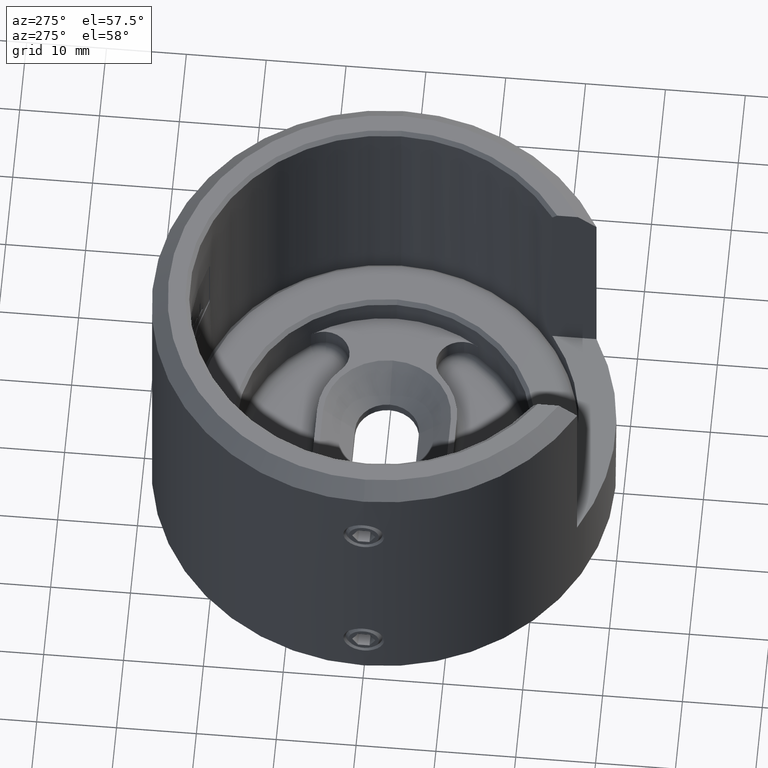
[diagram: clean part render]
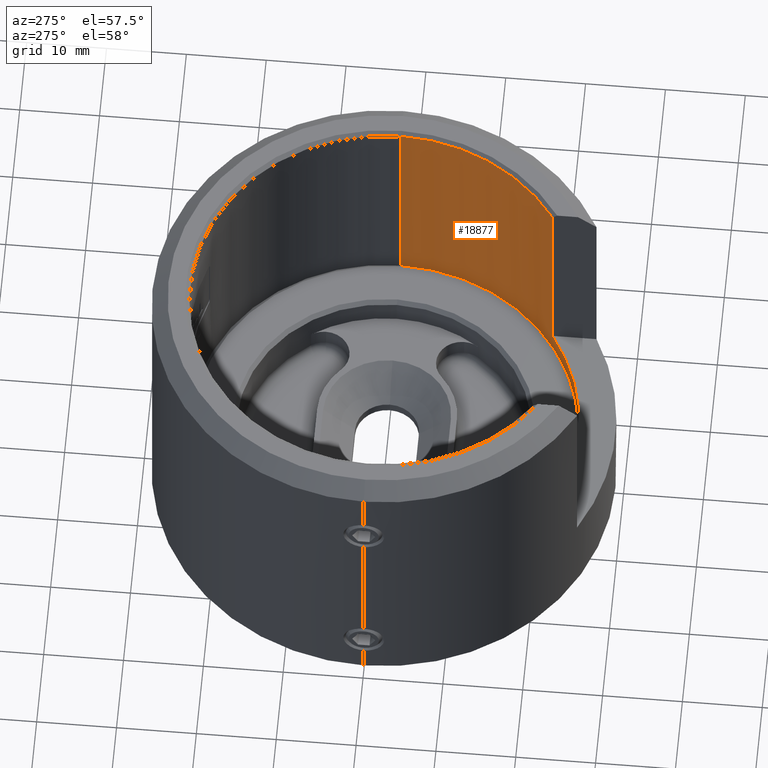
[diagram: same view with one face highlighted and labeled with its STEP entity id]
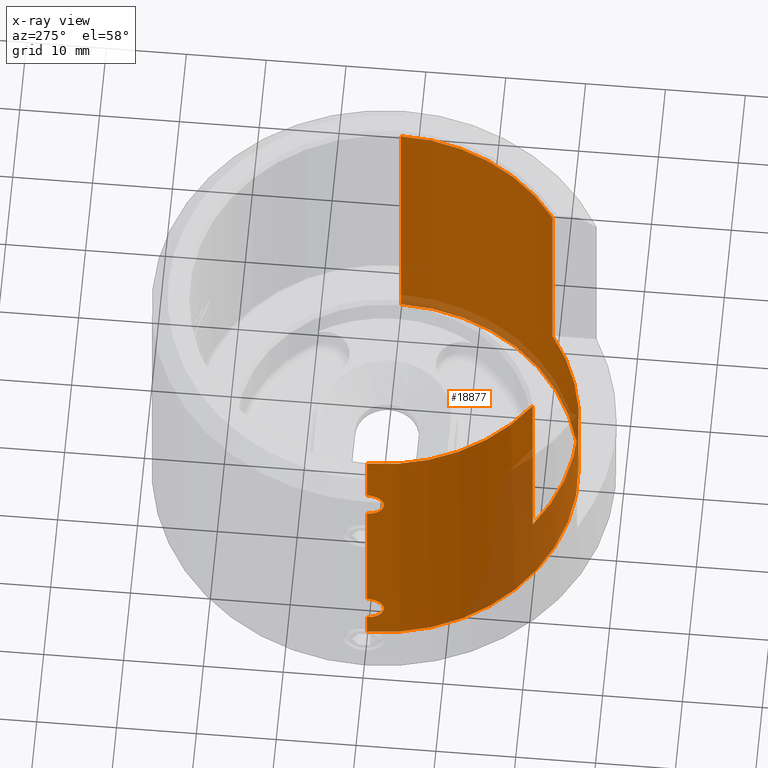
[diagram: x-ray of the same camera — body ghosted, the highlighted face saturated]
A machine part, auxiliary view. The second image highlights one B-rep face of the part: STEP entity #18877.
The next image is the same camera in x-ray: the body ghosted, the highlighted face saturated — about 16% of this face is hidden behind the body in this view.
In plain terms, the highlighted cylindrical surface (partial cylindrical patch) has radius 24.3 mm, axis along (0, 0, 1).
Its self-contained STEP definition (entity closure, byte-faithful):
#388 = DIRECTION ( 'NONE',  ( -0.0000000000000000000, -0.0000000000000000000, 1.000000000000000000 ) ) ;
#427 = CARTESIAN_POINT ( 'NONE',  ( -24.27836432878796600, -1.055920132162130300, -15.83571488410361800 ) ) ;
#495 = ORIENTED_EDGE ( 'NONE', *, *, #27649, .F. ) ;
#564 = EDGE_CURVE ( 'NONE', #25606, #26762, #18503, .T. ) ;
#830 = CARTESIAN_POINT ( 'NONE',  ( -24.30000000000000100, 2.975891721928068800E-015, -19.50000000000001100 ) ) ;
#884 = CARTESIAN_POINT ( 'NONE',  ( -24.28244261535861200, -0.9321712640384785000, -12.11326852955623500 ) ) ;
#1127 = CARTESIAN_POINT ( 'NONE',  ( -24.30000000000000100, -0.2741131583230302400, 7.900000000000007500 ) ) ;
#1218 = DIRECTION ( 'NONE',  ( -0.0000000000000000000, -0.0000000000000000000, -1.000000000000000000 ) ) ;
#1332 = CARTESIAN_POINT ( 'NONE',  ( 24.30000000000000100, 0.0000000000000000000, -20.00000000000000000 ) ) ;
#1345 = ORIENTED_EDGE ( 'NONE', *, *, #23451, .F. ) ;
#1720 = DIRECTION ( 'NONE',  ( -0.0000000000000000000, -0.0000000000000000000, 1.000000000000000000 ) ) ;
#1789 = CARTESIAN_POINT ( 'NONE',  ( -24.30000000000000100, 2.975891721928068800E-015, -20.00000000000000000 ) ) ;
#2268 = VECTOR ( 'NONE', #1720, 1000.000000000000000 ) ;
#2902 = AXIS2_PLACEMENT_3D ( 'NONE', #25100, #5766, #5865 ) ;
#2927 = CARTESIAN_POINT ( 'NONE',  ( -24.26650163914020600, -1.290180156003307700, -15.67939984825683400 ) ) ;
#3114 = CARTESIAN_POINT ( 'NONE',  ( -24.24257722591685000, -1.671306563032190800, -12.72111670266394700 ) ) ;
#3182 = CARTESIAN_POINT ( 'NONE',  ( -24.24257722591685400, -1.671306563032191900, 11.27888329733605300 ) ) ;
#3206 = CARTESIAN_POINT ( 'NONE',  ( -24.21826523367801800, -1.992092115764008600, -14.67859176889467700 ) ) ;
#3227 = ORIENTED_EDGE ( 'NONE', *, *, #4092, .T. ) ;
#3303 = CARTESIAN_POINT ( 'NONE',  ( -24.27738429266214500, -1.054407959346957300, -12.17866667196655300 ) ) ;
#3311 = EDGE_LOOP ( 'NONE', ( #16032, #25060, #3227, #23213, #25617, #3647, #26856, #10992, #1345, #17366, #16211, #495 ) ) ;
#3331 = CYLINDRICAL_SURFACE ( 'NONE', #9856, 24.30000000000000100 ) ;
#3469 = VERTEX_POINT ( 'NONE', #20830 ) ;
#3647 = ORIENTED_EDGE ( 'NONE', *, *, #4982, .T. ) ;
#3941 = DIRECTION ( 'NONE',  ( -0.0000000000000000000, -0.0000000000000000000, 1.000000000000000000 ) ) ;
#4092 = EDGE_CURVE ( 'NONE', #9819, #26701, #7849, .T. ) ;
#4234 = B_SPLINE_CURVE_WITH_KNOTS ( 'NONE', 3,
 ( #20520, #1127, #24846, #11898, #14072, #11996, #26992, #11714, #16317, #20707, #20428, #11799, #5608, #7884, #7793, #22868, #20614, #22482, #26708, #3182, #7596, #18185, #9633, #24644, #18750, #14359, #27558, #10297 ),
 .UNSPECIFIED., .F., .F.,
 ( 4, 2, 2, 2, 2, 2, 2, 2, 2, 2, 2, 2, 2, 4 ),
 ( 0.006568619102449720900, 0.007389505754472710200, 0.008210392406495700300, 0.008620835732507194100, 0.009031279058518689600, 0.009441722384530183400, 0.009852165710541678800, 0.01026260903655317300, 0.01067305236256466800, 0.01108349568857616400, 0.01149393901458765700, 0.01190438234059915100, 0.01231482566661064700, 0.01313571231863363600 ),
 .UNSPECIFIED. ) ;
#4545 = LINE ( 'NONE', #1332, #15633 ) ;
#4982 = EDGE_CURVE ( 'NONE', #9328, #25606, #12864, .T. ) ;
#5253 = VECTOR ( 'NONE', #3941, 1000.000000000000000 ) ;
#5358 = CARTESIAN_POINT ( 'NONE',  ( -24.29501295566956600, -0.5533498157405862800, -11.95583767531345900 ) ) ;
#5400 = CARTESIAN_POINT ( 'NONE',  ( -24.30000000000000100, 2.195446468095336800E-017, 12.09999999999999300 ) ) ;
#5484 = AXIS2_PLACEMENT_3D ( 'NONE', #26895, #1218, #5699 ) ;
#5608 = CARTESIAN_POINT ( 'NONE',  ( -24.20909872080406800, -2.099890268169129400, 9.859691317691654100 ) ) ;
#5699 = DIRECTION ( 'NONE',  ( 1.000000000000000000, 0.0000000000000000000, 0.0000000000000000000 ) ) ;
#5758 = CARTESIAN_POINT ( 'NONE',  ( 0.0000000000000000000, 0.0000000000000000000, -8.000000000000000000 ) ) ;
#5766 = DIRECTION ( 'NONE',  ( 0.0000000000000000000, 0.0000000000000000000, 1.000000000000000000 ) ) ;
#5865 = DIRECTION ( 'NONE',  ( 1.000000000000000000, 0.0000000000000000000, 0.0000000000000000000 ) ) ;
#6361 = CARTESIAN_POINT ( 'NONE',  ( 24.30000000000000100, 0.0000000000000000000, 19.50000000000002100 ) ) ;
#6846 = VERTEX_POINT ( 'NONE', #14099 ) ;
#7160 = CARTESIAN_POINT ( 'NONE',  ( -24.30000000000000100, -0.2741131583230294000, -16.10000000000000100 ) ) ;
#7518 = CARTESIAN_POINT ( 'NONE',  ( -24.21029852693006700, -2.086184942360737300, -14.27670109601971900 ) ) ;
#7577 = DIRECTION ( 'NONE',  ( 0.0000000000000000000, 0.0000000000000000000, 1.000000000000000000 ) ) ;
#7596 = CARTESIAN_POINT ( 'NONE',  ( -24.24859503869408400, -1.582731133446952500, 11.38698107359879700 ) ) ;
#7793 = CARTESIAN_POINT ( 'NONE',  ( -24.21026532259343600, -2.086567739211354900, 10.27378589739227800 ) ) ;
#7838 = VECTOR ( 'NONE', #8612, 1000.000000000000000 ) ;
#7849 = B_SPLINE_CURVE_WITH_KNOTS ( 'NONE', 3,
 ( #22047, #7160, #9296, #427, #2927, #19642, #15446, #22505, #15872, #3206, #26828, #7518, #9562, #13803, #11736, #18211, #17930, #26543, #13723, #3114, #22411, #11543, #24573, #3303, #884, #5358, #9661, #22312 ),
 .UNSPECIFIED., .F., .F.,
 ( 4, 2, 2, 2, 2, 2, 2, 2, 2, 2, 2, 2, 2, 4 ),
 ( 0.006568619102449720900, 0.007389505754472713700, 0.008210392406495707300, 0.008620835732507201000, 0.009031279058518694800, 0.009441722384530188600, 0.009852165710541684100, 0.01026260903655317800, 0.01067305236256467200, 0.01108349568857616700, 0.01149393901458766100, 0.01190438234059915500, 0.01231482566661064800, 0.01313571231863363800 ),
 .UNSPECIFIED. ) ;
#7884 = CARTESIAN_POINT ( 'NONE',  ( -24.20907979633453200, -2.100108432128158200, 10.13700451812523600 ) ) ;
#8249 = AXIS2_PLACEMENT_3D ( 'NONE', #22468, #7577, #16203 ) ;
#8612 = DIRECTION ( 'NONE',  ( -0.0000000000000000000, -0.0000000000000000000, 1.000000000000000000 ) ) ;
#8723 = DIRECTION ( 'NONE',  ( -0.0000000000000000000, -0.0000000000000000000, 1.000000000000000000 ) ) ;
#9296 = CARTESIAN_POINT ( 'NONE',  ( -24.29508043325526900, -0.5504621226996950800, -16.04494692173117800 ) ) ;
#9328 = VERTEX_POINT ( 'NONE', #5400 ) ;
#9562 = CARTESIAN_POINT ( 'NONE',  ( -24.20909872080407900, -2.099890268169129800, -14.14030868230834900 ) ) ;
#9623 = CIRCLE ( 'NONE', #8249, 24.30000000000000100 ) ;
#9633 = CARTESIAN_POINT ( 'NONE',  ( -24.26634503041854200, -1.283613299640645300, 11.66774342556798900 ) ) ;
#9661 = CARTESIAN_POINT ( 'NONE',  ( -24.30000000000000100, -0.2775785844472396500, -11.90000000000000900 ) ) ;
#9819 = VERTEX_POINT ( 'NONE', #22232 ) ;
#9856 = AXIS2_PLACEMENT_3D ( 'NONE', #26150, #8723, #17442 ) ;
#9941 = VERTEX_POINT ( 'NONE', #25079 ) ;
#10026 = CIRCLE ( 'NONE', #27371, 24.30000000000000100 ) ;
#10086 = CARTESIAN_POINT ( 'NONE',  ( 14.00000000000000400, -19.86177232776571700, -8.000000000000000000 ) ) ;
#10297 = CARTESIAN_POINT ( 'NONE',  ( -24.30000000000000100, 2.195446468095336800E-017, 12.09999999999999300 ) ) ;
#10475 = CARTESIAN_POINT ( 'NONE',  ( -24.30000000000000100, 2.975891721928068800E-015, -20.00000000000000000 ) ) ;
#10700 = EDGE_CURVE ( 'NONE', #3469, #13657, #9623, .T. ) ;
#10938 = LINE ( 'NONE', #25791, #12296 ) ;
#10992 = ORIENTED_EDGE ( 'NONE', *, *, #13687, .T. ) ;
#11075 = CARTESIAN_POINT ( 'NONE',  ( 24.30000000000000100, 0.0000000000000000000, -19.50000000000001100 ) ) ;
#11543 = CARTESIAN_POINT ( 'NONE',  ( -24.26045209836780000, -1.389195153375918800, -12.41921185317563700 ) ) ;
#11569 = EDGE_CURVE ( 'NONE', #18452, #3469, #19388, .T. ) ;
#11714 = CARTESIAN_POINT ( 'NONE',  ( -24.23171771363559700, -1.822005707096194800, 8.946848909702991300 ) ) ;
#11736 = CARTESIAN_POINT ( 'NONE',  ( -24.21026532259343600, -2.086567739211354900, -13.72621410260772400 ) ) ;
#11799 = CARTESIAN_POINT ( 'NONE',  ( -24.21029852693006400, -2.086184942360737300, 9.723298903980277100 ) ) ;
#11898 = CARTESIAN_POINT ( 'NONE',  ( -24.27836432878796900, -1.055920132162131900, 8.164285115896381800 ) ) ;
#11996 = CARTESIAN_POINT ( 'NONE',  ( -24.24872428439247000, -1.580755274813232300, 8.610773620871111000 ) ) ;
#12296 = VECTOR ( 'NONE', #388, 1000.000000000000000 ) ;
#12864 = LINE ( 'NONE', #10475, #7838 ) ;
#13657 = VERTEX_POINT ( 'NONE', #6361 ) ;
#13687 = EDGE_CURVE ( 'NONE', #26762, #6846, #22633, .T. ) ;
#13723 = CARTESIAN_POINT ( 'NONE',  ( -24.23160920294010600, -1.823439502194986300, -12.94934472938337300 ) ) ;
#13803 = CARTESIAN_POINT ( 'NONE',  ( -24.20907979633453500, -2.100108432128158200, -13.86299548187476000 ) ) ;
#14072 = CARTESIAN_POINT ( 'NONE',  ( -24.26650163914020600, -1.290180156003306400, 8.320600151743160900 ) ) ;
#14099 = CARTESIAN_POINT ( 'NONE',  ( -13.99999999999999600, -19.86177232776572400, -8.000000000000000000 ) ) ;
#14359 = CARTESIAN_POINT ( 'NONE',  ( -24.29501295566955900, -0.5533498157405869500, 12.04416232468654400 ) ) ;
#14462 = VERTEX_POINT ( 'NONE', #830 ) ;
#15294 = CARTESIAN_POINT ( 'NONE',  ( -24.30000000000000100, 2.975891721928068800E-015, 19.50000000000002100 ) ) ;
#15446 = CARTESIAN_POINT ( 'NONE',  ( -24.24270549669130000, -1.669454506929026100, -15.28130935569020100 ) ) ;
#15633 = VECTOR ( 'NONE', #26904, 1000.000000000000000 ) ;
#15872 = CARTESIAN_POINT ( 'NONE',  ( -24.22671419450553300, -1.886563347521371000, -14.93262882342853500 ) ) ;
#16002 = LINE ( 'NONE', #1789, #5253 ) ;
#16032 = ORIENTED_EDGE ( 'NONE', *, *, #25206, .T. ) ;
#16203 = DIRECTION ( 'NONE',  ( 1.000000000000000000, 0.0000000000000000000, 0.0000000000000000000 ) ) ;
#16211 = ORIENTED_EDGE ( 'NONE', *, *, #10700, .T. ) ;
#16317 = CARTESIAN_POINT ( 'NONE',  ( -24.22671419450553300, -1.886563347521370600, 9.067371176571466400 ) ) ;
#17366 = ORIENTED_EDGE ( 'NONE', *, *, #11569, .T. ) ;
#17442 = DIRECTION ( 'NONE',  ( 1.000000000000000000, 0.0000000000000000000, 0.0000000000000000000 ) ) ;
#17930 = CARTESIAN_POINT ( 'NONE',  ( -24.21817827991729600, -1.993145678599654400, -13.32447550936852400 ) ) ;
#18160 = CARTESIAN_POINT ( 'NONE',  ( -24.30000000000000100, 1.659401395440727800E-016, -11.90000000000000700 ) ) ;
#18185 = CARTESIAN_POINT ( 'NONE',  ( -24.26045209836780000, -1.389195153375918800, 11.58078814682436100 ) ) ;
#18211 = CARTESIAN_POINT ( 'NONE',  ( -24.21478911786600800, -2.033396148802733400, -13.45776043120895900 ) ) ;
#18452 = VERTEX_POINT ( 'NONE', #10086 ) ;
#18503 = CIRCLE ( 'NONE', #2902, 24.30000000000000100 ) ;
#18750 = CARTESIAN_POINT ( 'NONE',  ( -24.28244261535860800, -0.9321712640384787200, 11.88673147044376300 ) ) ;
#18877 = ADVANCED_FACE ( 'NONE', ( #20116 ), #3331, .F. ) ;
#19014 = CARTESIAN_POINT ( 'NONE',  ( -13.99999999999999600, -19.86177232776572400, -20.00000000000000000 ) ) ;
#19388 = LINE ( 'NONE', #27580, #2268 ) ;
#19406 = EDGE_CURVE ( 'NONE', #9941, #9328, #4234, .T. ) ;
#19642 = CARTESIAN_POINT ( 'NONE',  ( -24.24872428439245900, -1.580755274813232700, -15.38922637912888900 ) ) ;
#20044 = CIRCLE ( 'NONE', #5484, 24.30000000000000100 ) ;
#20116 = FACE_OUTER_BOUND ( 'NONE', #3311, .T. ) ;
#20428 = CARTESIAN_POINT ( 'NONE',  ( -24.21485414482461400, -2.032624195879515500, 9.454866999167782300 ) ) ;
#20520 = CARTESIAN_POINT ( 'NONE',  ( -24.30000000000000100, 2.975891709358291600E-015, 7.900000000000007500 ) ) ;
#20614 = CARTESIAN_POINT ( 'NONE',  ( -24.21817827991730000, -1.993145678599653500, 10.67552449063147800 ) ) ;
#20707 = CARTESIAN_POINT ( 'NONE',  ( -24.21826523367802500, -1.992092115764009500, 9.321408231105319700 ) ) ;
#20773 = DIRECTION ( 'NONE',  ( -0.0000000000000000000, -0.0000000000000000000, -1.000000000000000000 ) ) ;
#20830 = CARTESIAN_POINT ( 'NONE',  ( 14.00000000000000400, -19.86177232776571700, 19.50000000000002100 ) ) ;
#21027 = EDGE_CURVE ( 'NONE', #14462, #9819, #16002, .T. ) ;
#21070 = CARTESIAN_POINT ( 'NONE',  ( -13.99999999999999600, -19.86177232776572400, 19.50000000000002100 ) ) ;
#22047 = CARTESIAN_POINT ( 'NONE',  ( -24.30000000000000100, 2.975891709358291600E-015, -16.09999999999999400 ) ) ;
#22232 = CARTESIAN_POINT ( 'NONE',  ( -24.30000000000000100, 2.975891709358291600E-015, -16.09999999999999400 ) ) ;
#22312 = CARTESIAN_POINT ( 'NONE',  ( -24.30000000000000100, 1.659401395440727800E-016, -11.90000000000000700 ) ) ;
#22411 = CARTESIAN_POINT ( 'NONE',  ( -24.24859503869408400, -1.582731133446952000, -12.61301892640120500 ) ) ;
#22468 = CARTESIAN_POINT ( 'NONE',  ( 0.0000000000000000000, 0.0000000000000000000, 19.50000000000002100 ) ) ;
#22482 = CARTESIAN_POINT ( 'NONE',  ( -24.22661268287100700, -1.887863026846010400, 10.93001947583435500 ) ) ;
#22505 = CARTESIAN_POINT ( 'NONE',  ( -24.23171771363559700, -1.822005707096195700, -15.05315109029700700 ) ) ;
#22633 = LINE ( 'NONE', #19014, #25339 ) ;
#22868 = CARTESIAN_POINT ( 'NONE',  ( -24.21478911786600500, -2.033396148802732600, 10.54223956879104000 ) ) ;
#22925 = DIRECTION ( 'NONE',  ( 1.000000000000000000, 0.0000000000000000000, 0.0000000000000000000 ) ) ;
#23016 = VERTEX_POINT ( 'NONE', #11075 ) ;
#23213 = ORIENTED_EDGE ( 'NONE', *, *, #26533, .T. ) ;
#23451 = EDGE_CURVE ( 'NONE', #18452, #6846, #10026, .T. ) ;
#24573 = CARTESIAN_POINT ( 'NONE',  ( -24.26634503041854200, -1.283613299640645300, -12.33225657443201100 ) ) ;
#24644 = CARTESIAN_POINT ( 'NONE',  ( -24.27738429266214800, -1.054407959346956900, 11.82133332803344500 ) ) ;
#24846 = CARTESIAN_POINT ( 'NONE',  ( -24.29508043325526900, -0.5504621226996967400, 7.955053078268830900 ) ) ;
#25060 = ORIENTED_EDGE ( 'NONE', *, *, #21027, .T. ) ;
#25079 = CARTESIAN_POINT ( 'NONE',  ( -24.30000000000000100, 2.975891709358291600E-015, 7.900000000000007500 ) ) ;
#25100 = CARTESIAN_POINT ( 'NONE',  ( 0.0000000000000000000, 0.0000000000000000000, 19.50000000000002100 ) ) ;
#25206 = EDGE_CURVE ( 'NONE', #23016, #14462, #20044, .T. ) ;
#25339 = VECTOR ( 'NONE', #25582, 1000.000000000000000 ) ;
#25582 = DIRECTION ( 'NONE',  ( 0.0000000000000000000, 0.0000000000000000000, -1.000000000000000000 ) ) ;
#25606 = VERTEX_POINT ( 'NONE', #15294 ) ;
#25617 = ORIENTED_EDGE ( 'NONE', *, *, #19406, .T. ) ;
#25791 = CARTESIAN_POINT ( 'NONE',  ( -24.30000000000000100, 2.975891721928068800E-015, -20.00000000000000000 ) ) ;
#26150 = CARTESIAN_POINT ( 'NONE',  ( 0.0000000000000000000, 0.0000000000000000000, -20.00000000000000000 ) ) ;
#26533 = EDGE_CURVE ( 'NONE', #26701, #9941, #10938, .T. ) ;
#26543 = CARTESIAN_POINT ( 'NONE',  ( -24.22661268287100000, -1.887863026846010400, -13.06998052416564200 ) ) ;
#26701 = VERTEX_POINT ( 'NONE', #18160 ) ;
#26708 = CARTESIAN_POINT ( 'NONE',  ( -24.23160920294009900, -1.823439502194987600, 11.05065527061662700 ) ) ;
#26762 = VERTEX_POINT ( 'NONE', #21070 ) ;
#26828 = CARTESIAN_POINT ( 'NONE',  ( -24.21485414482461000, -2.032624195879515000, -14.54513300083221600 ) ) ;
#26856 = ORIENTED_EDGE ( 'NONE', *, *, #564, .T. ) ;
#26895 = CARTESIAN_POINT ( 'NONE',  ( 0.0000000000000000000, 0.0000000000000000000, -19.50000000000001100 ) ) ;
#26904 = DIRECTION ( 'NONE',  ( -0.0000000000000000000, -0.0000000000000000000, 1.000000000000000000 ) ) ;
#26992 = CARTESIAN_POINT ( 'NONE',  ( -24.24270549669130800, -1.669454506929026500, 8.718690644309797100 ) ) ;
#27371 = AXIS2_PLACEMENT_3D ( 'NONE', #5758, #20773, #22925 ) ;
#27558 = CARTESIAN_POINT ( 'NONE',  ( -24.30000000000000100, -0.2775785844472391000, 12.09999999999999400 ) ) ;
#27580 = CARTESIAN_POINT ( 'NONE',  ( 14.00000000000000400, -19.86177232776571700, -20.00000000000000000 ) ) ;
#27649 = EDGE_CURVE ( 'NONE', #23016, #13657, #4545, .T. ) ;